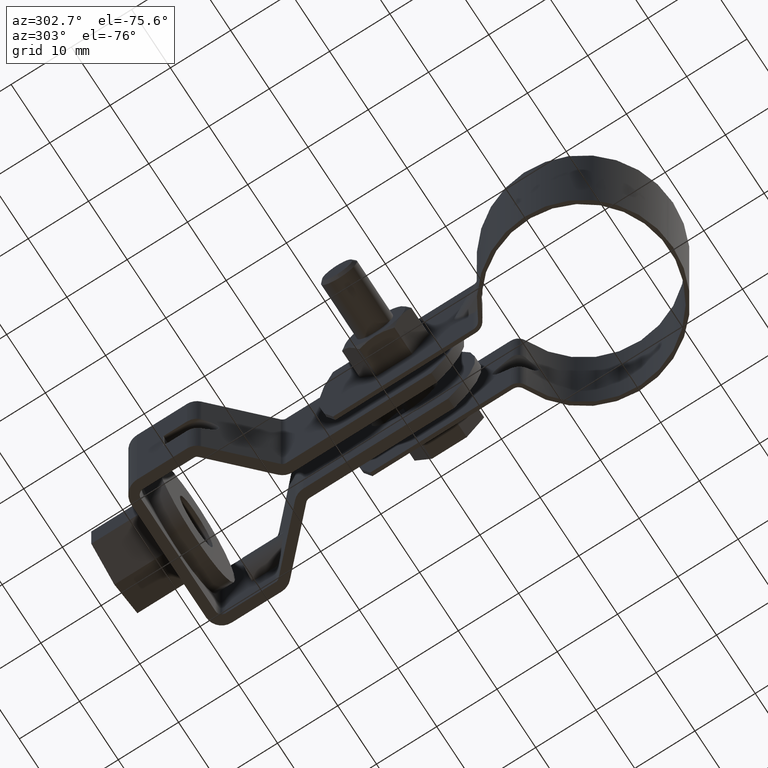
[diagram: clean part render]
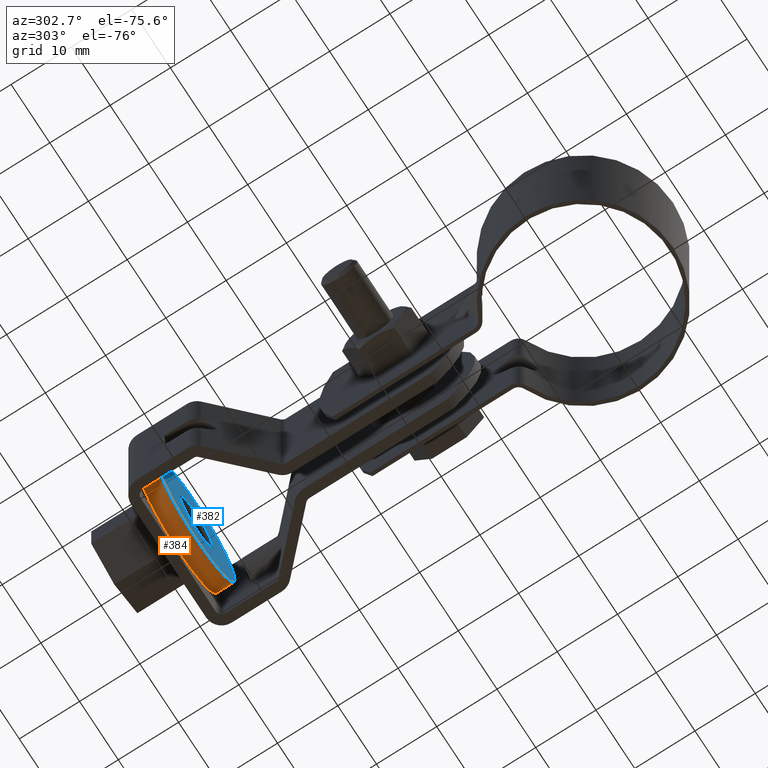
[diagram: same view with the hole feature highlighted: cylindrical wall and planar end face, labeled with their STEP entity ids]
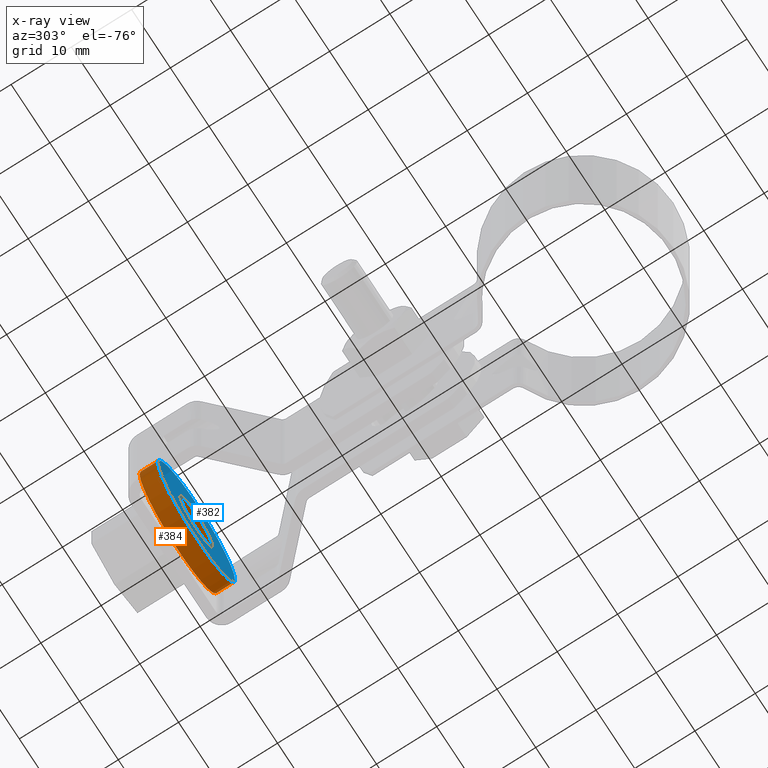
[diagram: x-ray of the same camera — body ghosted, the hole faces saturated]
A machine part, auxiliary view. The highlighted faces form one hole feature of diameter 20 mm: the cylindrical wall (entity #384, orange) and its adjacent planar end face (entity #382, blue) — they share a circular edge in the B-rep.
The next image is the same camera in x-ray (body ghosted, the hole faces saturated) — the bore reads through the body.
Wall:
#384 = ADVANCED_FACE( '', ( #650, #651 ), #652, .T. );
#650 = FACE_OUTER_BOUND( '', #922, .T. );
#651 = FACE_OUTER_BOUND( '', #923, .T. );
#652 = CYLINDRICAL_SURFACE( '', #924, 10.0000000000000 );
#922 = EDGE_LOOP( '', ( #1898 ) );
#923 = EDGE_LOOP( '', ( #1899 ) );
#924 = AXIS2_PLACEMENT_3D( '', #1900, #1901, #1902 );
#1898 = ORIENTED_EDGE( '', *, *, #2244, .T. );
#1899 = ORIENTED_EDGE( '', *, *, #2233, .F. );
#1900 = CARTESIAN_POINT( '', ( 3.65694356300552E-009, 64.2129670322055, 1.36210612233789E-006 ) );
#1901 = DIRECTION( '', ( -1.39877502405819E-011, -1.00000000000000, -9.98350074832281E-009 ) );
#1902 = DIRECTION( '', ( -1.00000000000000, 1.39877500531923E-011, 1.87699318091892E-011 ) );
#2233 = EDGE_CURVE( '', #2753, #2753, #2754, .T. );
#2244 = EDGE_CURVE( '', #2772, #2772, #2773, .T. );
#2753 = VERTEX_POINT( '', #3631 );
#2754 = CIRCLE( '', #3632, 10.0000000000000 );
#2772 = VERTEX_POINT( '', #3659 );
#2773 = CIRCLE( '', #3660, 10.0000000000000 );
#3631 = CARTESIAN_POINT( '', ( -9.99999999630109, 67.2129670323454, 1.39224432206908E-006 ) );
#3632 = AXIS2_PLACEMENT_3D( '', #4172, #4173, #4174 );
#3659 = CARTESIAN_POINT( '', ( -9.99999999634306, 64.2129670323454, 1.36229382165598E-006 ) );
#3660 = AXIS2_PLACEMENT_3D( '', #4187, #4188, #4189 );
#4172 = CARTESIAN_POINT( '', ( 3.69890681372726E-009, 67.2129670322055, 1.39205662275099E-006 ) );
#4173 = DIRECTION( '', ( 1.39877502405819E-011, 1.00000000000000, 9.98350074832281E-009 ) );
#4174 = DIRECTION( '', ( -1.00000000000000, 1.39877500531923E-011, 1.87699318091892E-011 ) );
#4187 = CARTESIAN_POINT( '', ( 3.65694356300552E-009, 64.2129670322055, 1.36210612233789E-006 ) );
#4188 = DIRECTION( '', ( 1.39877502405819E-011, 1.00000000000000, 9.98350074832281E-009 ) );
#4189 = DIRECTION( '', ( -1.00000000000000, 1.39877500531923E-011, 1.87699318091892E-011 ) );
End face:
#382 = ADVANCED_FACE( '', ( #644, #645 ), #646, .F. );
#644 = FACE_BOUND( '', #916, .T. );
#645 = FACE_OUTER_BOUND( '', #917, .T. );
#646 = PLANE( '', #918 );
#916 = EDGE_LOOP( '', ( #1888 ) );
#917 = EDGE_LOOP( '', ( #1889 ) );
#918 = AXIS2_PLACEMENT_3D( '', #1890, #1891, #1892 );
#1888 = ORIENTED_EDGE( '', *, *, #2243, .T. );
#1889 = ORIENTED_EDGE( '', *, *, #2244, .F. );
#1890 = CARTESIAN_POINT( '', ( 3.65694356300552E-009, 64.2129670322055, 1.36210612233789E-006 ) );
#1891 = DIRECTION( '', ( 1.39877502405819E-011, 1.00000000000000, 9.98350074832280E-009 ) );
#1892 = DIRECTION( '', ( -1.00000000000000, 1.39877500531923E-011, 1.87699318091892E-011 ) );
#2243 = EDGE_CURVE( '', #2770, #2770, #2771, .T. );
#2244 = EDGE_CURVE( '', #2772, #2772, #2773, .T. );
#2770 = VERTEX_POINT( '', #3657 );
#2771 = CIRCLE( '', #3658, 4.25000000000000 );
#2772 = VERTEX_POINT( '', #3659 );
#2773 = CIRCLE( '', #3660, 10.0000000000000 );
#3657 = CARTESIAN_POINT( '', ( -4.24999999634306, 64.2129670322650, 1.36218589454808E-006 ) );
#3658 = AXIS2_PLACEMENT_3D( '', #4184, #4185, #4186 );
#3659 = CARTESIAN_POINT( '', ( -9.99999999634306, 64.2129670323454, 1.36229382165598E-006 ) );
#3660 = AXIS2_PLACEMENT_3D( '', #4187, #4188, #4189 );
#4184 = CARTESIAN_POINT( '', ( 3.65694573140986E-009, 64.2129670322055, 1.36210612233789E-006 ) );
#4185 = DIRECTION( '', ( 1.39877502405819E-011, 1.00000000000000, 9.98350074832281E-009 ) );
#4186 = DIRECTION( '', ( -1.00000000000000, 1.39877500531923E-011, 1.87699318091892E-011 ) );
#4187 = CARTESIAN_POINT( '', ( 3.65694356300552E-009, 64.2129670322055, 1.36210612233789E-006 ) );
#4188 = DIRECTION( '', ( 1.39877502405819E-011, 1.00000000000000, 9.98350074832281E-009 ) );
#4189 = DIRECTION( '', ( -1.00000000000000, 1.39877500531923E-011, 1.87699318091892E-011 ) );